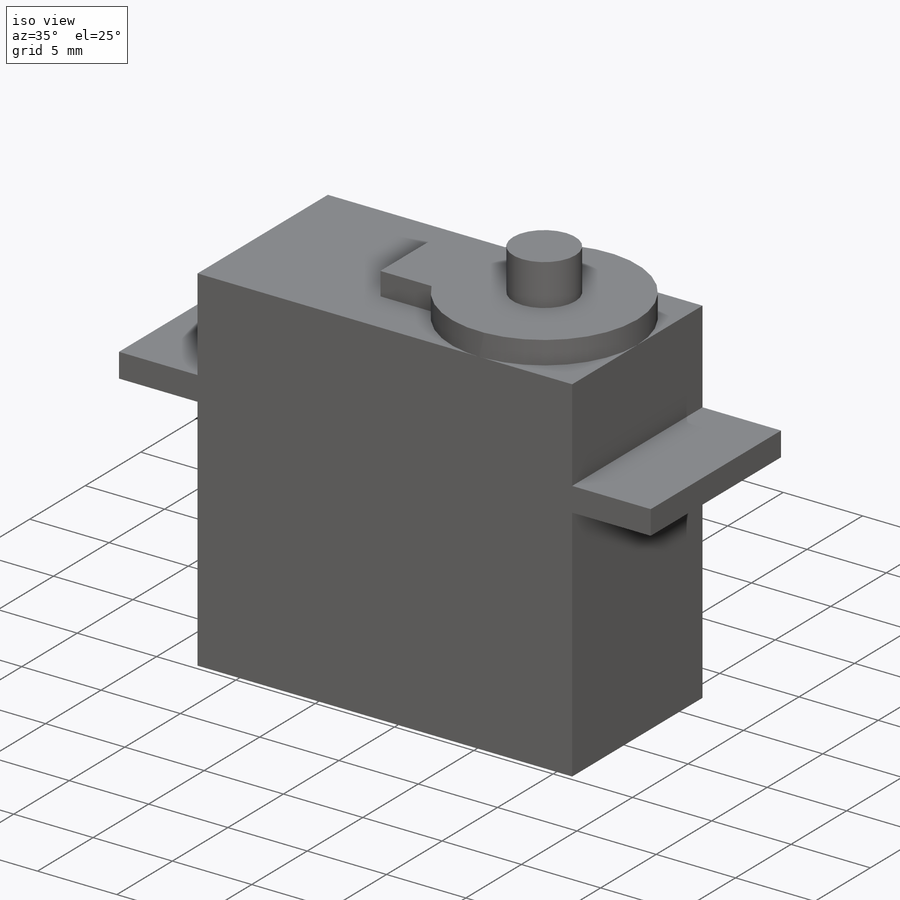
[diagram: iso view]
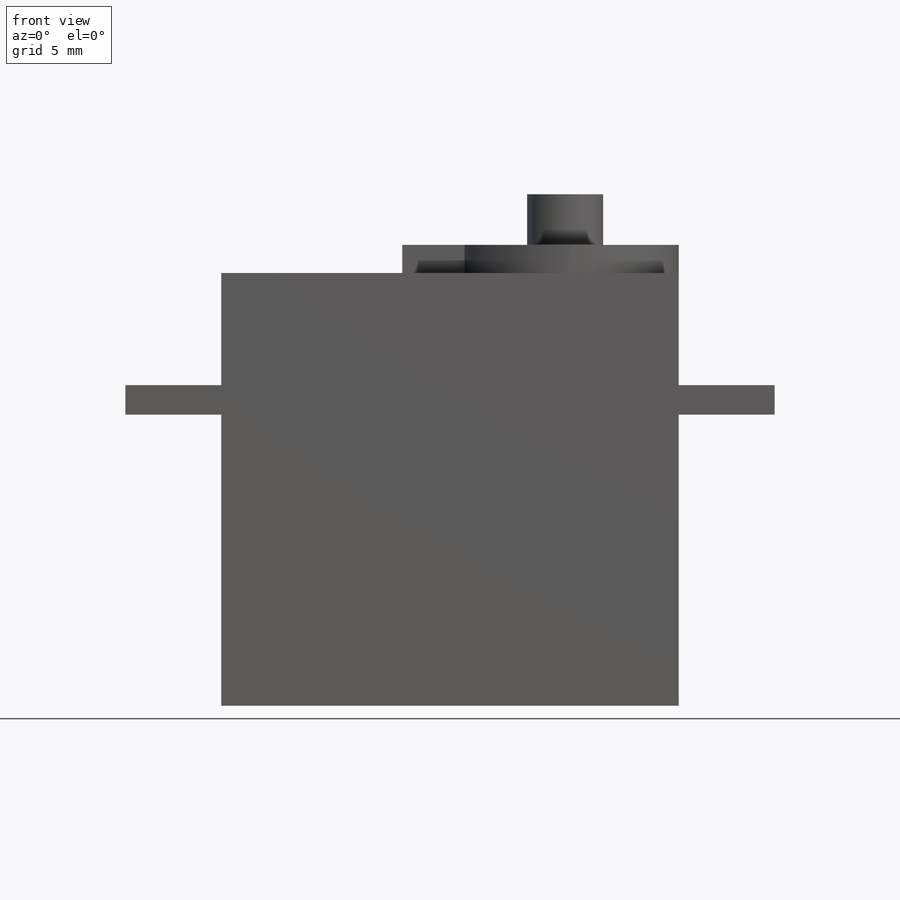
[diagram: front view]
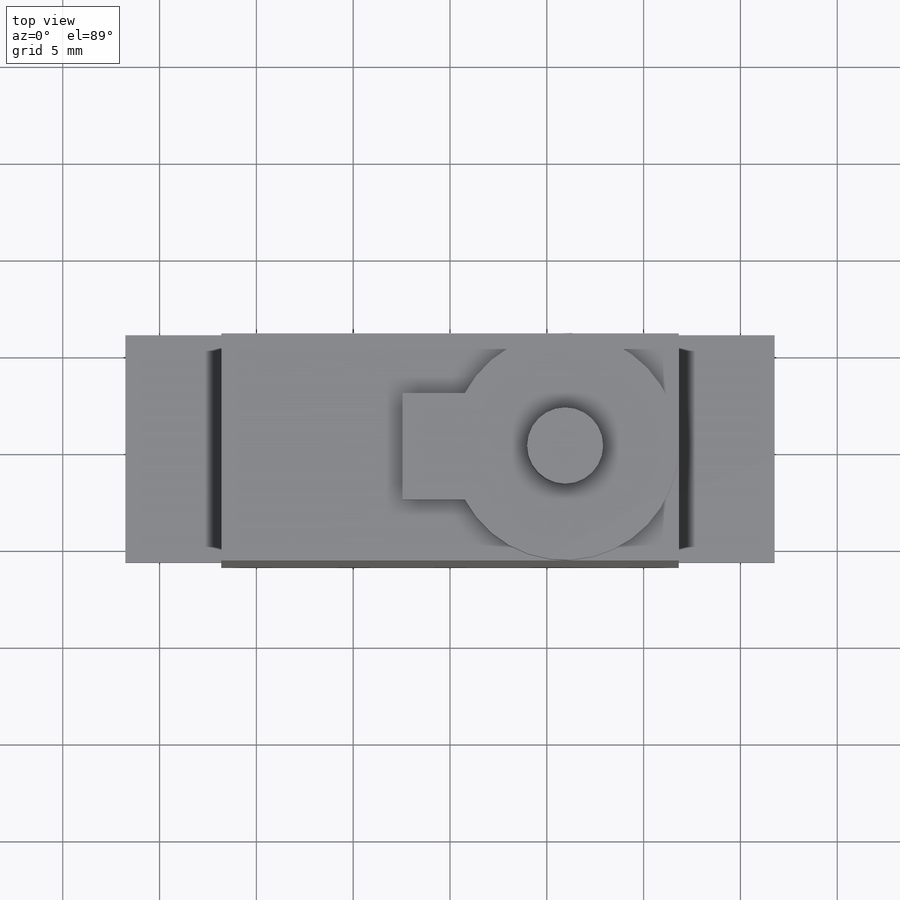
[diagram: top view]
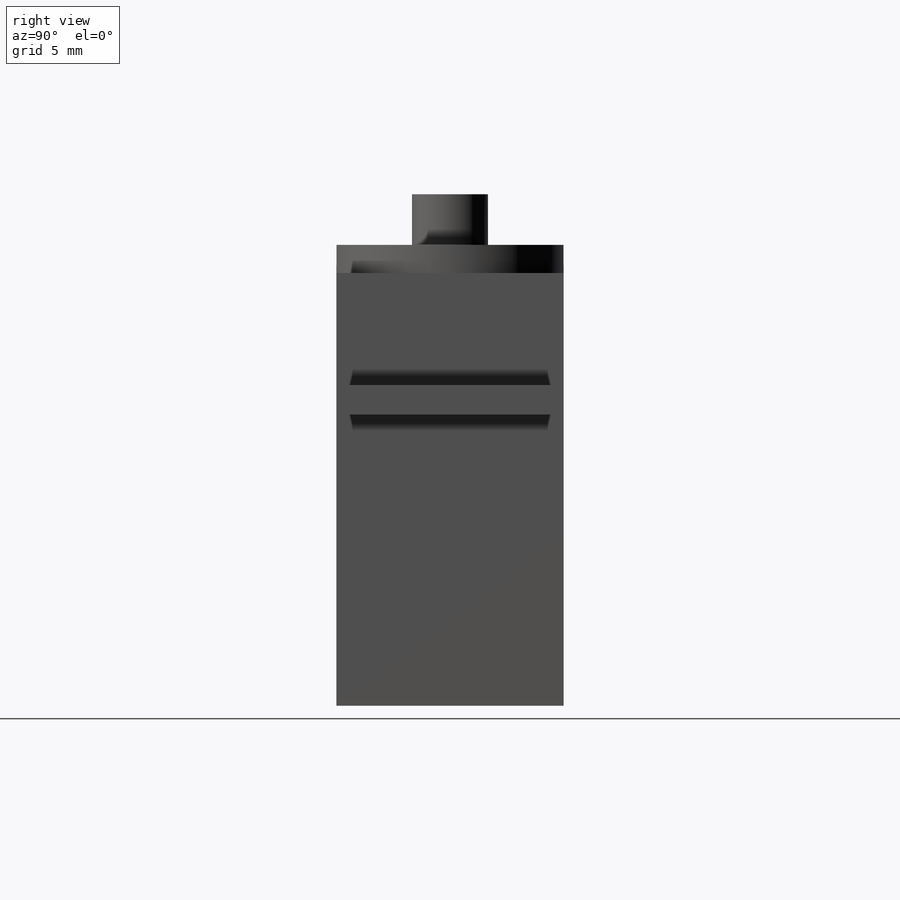
[diagram: right view]
SOLIDWORKS PART (.sldprt)
format: sldprt  version: not decoded by parser v0  size: 174,080 bytes
history: native  units: mm
features: sketch x5, extrude x5, material x1 (+12 scaffold rows collapsed)
feature tree (23):
  scaffold x12  (default folders/planes/origin — collapsed)
  material  "Material <not specified>"
  sketch  "Sketch1"  dims[D1=23.622mm D2=22.352mm]
  extrude  "Boss-Extrude1"  Depth=11.7348mm
  sketch  "Sketch3"  dims[D1=1.524mm D2=33.528mm D3=15.0368mm]
  extrude  "Boss-Extrude2"  [1 undecoded]
  sketch  "Sketch4"
  extrude  "Boss-Extrude3"  Depth=23.7998mm
  sketch  "Sketch5"  dims[D1=3.9243mm]
  extrude  "Boss-Extrude4"  Depth=26.416mm
  sketch  "Sketch6"  dims[D1=14.2748mm D2=5.4864mm]
  extrude  "Boss-Extrude5"  [1 undecoded]
decode coverage: 7 of 10 modeling features carry decoded parameters
note: 2 parameter values undecoded
note: suppression state not decoded; provenance and decode notes live in map.json
